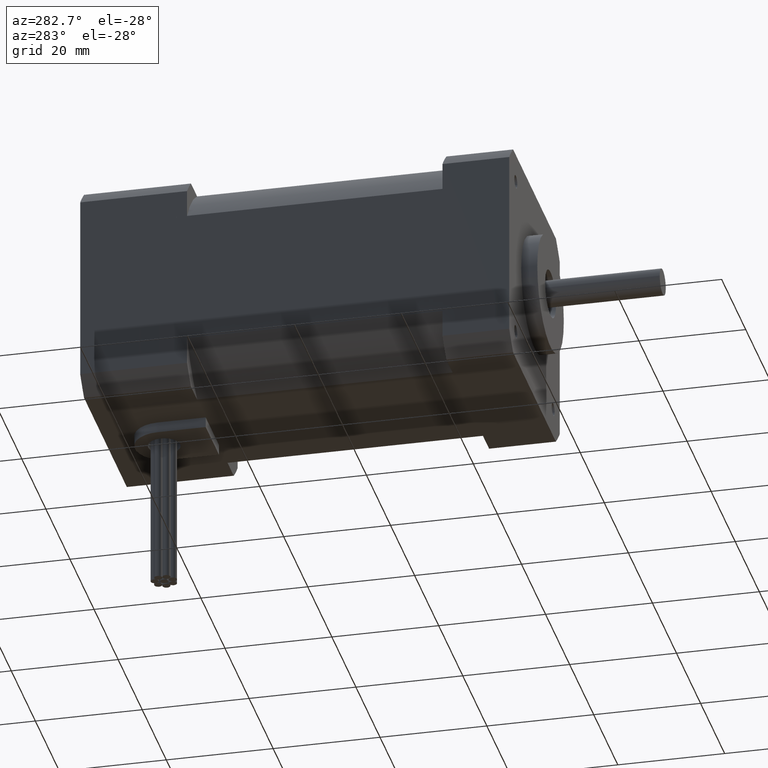
[diagram: clean part render]
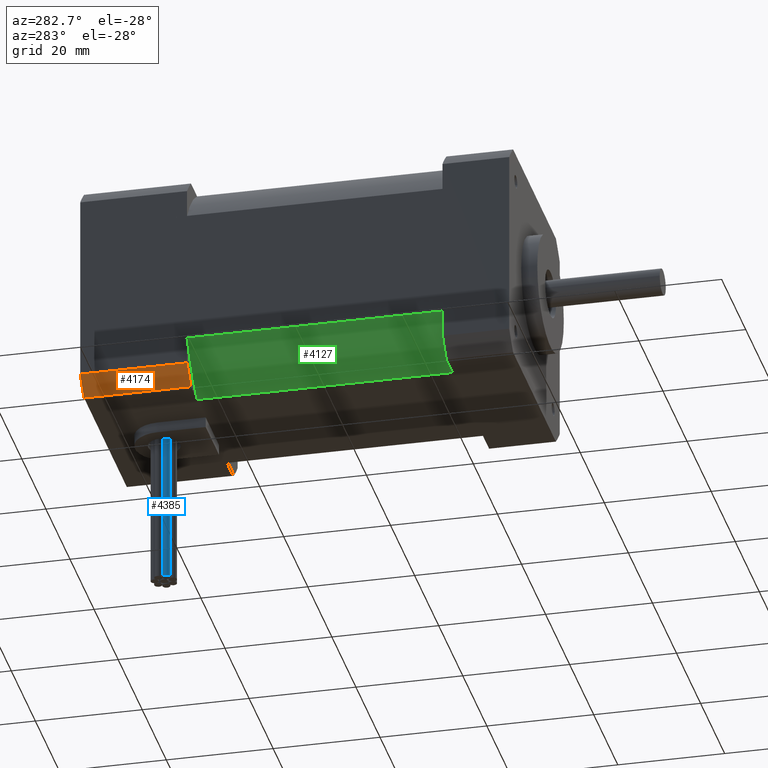
[diagram: same view with three faces highlighted in distinct colors, each labeled with its STEP entity id]
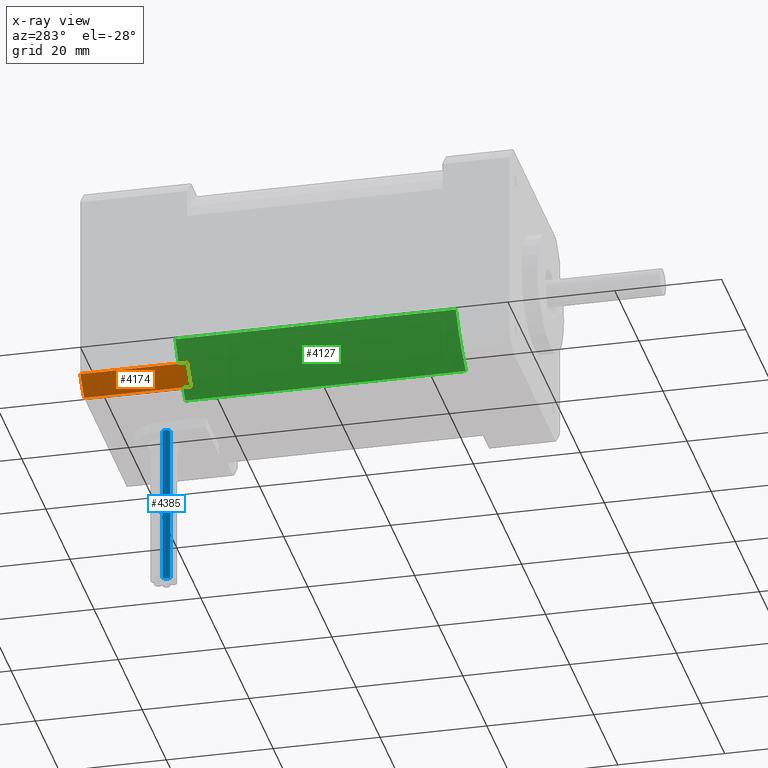
[diagram: x-ray of the same camera — body ghosted, the three highlighted faces saturated]
A machine part, auxiliary view with three faces highlighted in distinct colors.
The next image is the same camera in x-ray (body ghosted, the three faces saturated) — at least one of them is partly hidden behind the body in this view.
Their STEP definitions:

[orange] entity #4174 — the highlighted cylindrical surface (partial cylindrical patch) has radius 27.5 mm, axis along (0, 1, -0).
#373=LINE('',#6390,#595);
#380=LINE('',#6404,#602);
#595=VECTOR('',#5144,2.);
#602=VECTOR('',#5153,2.);
#908=FACE_OUTER_BOUND('',#1196,.T.);
#1196=EDGE_LOOP('',(#2857,#2858,#2859,#2860));
#1515=CIRCLE('',#4496,2.75);
#1518=CIRCLE('',#4502,2.75);
#1780=VERTEX_POINT('',#6387);
#1781=VERTEX_POINT('',#6389);
#1786=VERTEX_POINT('',#6401);
#1787=VERTEX_POINT('',#6403);
#2201=EDGE_CURVE('',#1780,#1781,#373,.T.);
#2208=EDGE_CURVE('',#1787,#1786,#380,.T.);
#2212=EDGE_CURVE('',#1780,#1787,#1515,.T.);
#2218=EDGE_CURVE('',#1781,#1786,#1518,.T.);
#2857=ORIENTED_EDGE('',*,*,#2212,.T.);
#2858=ORIENTED_EDGE('',*,*,#2208,.T.);
#2859=ORIENTED_EDGE('',*,*,#2218,.F.);
#2860=ORIENTED_EDGE('',*,*,#2201,.F.);
#3817=CYLINDRICAL_SURFACE('',#4501,2.75);
#4174=ADVANCED_FACE('',(#908),#3817,.T.);
#4496=AXIS2_PLACEMENT_3D('',#6411,#5162,#5163);
#4501=AXIS2_PLACEMENT_3D('',#6422,#5175,#5176);
#4502=AXIS2_PLACEMENT_3D('',#6423,#5177,#5178);
#5144=DIRECTION('',(1.45477499778469E-16,1.,-1.24501532695106E-16));
#5153=DIRECTION('',(1.45477499778469E-16,1.,-1.24501532695106E-16));
#5162=DIRECTION('center_axis',(1.45477499778469E-16,1.,-1.24501532695106E-16));
#5163=DIRECTION('ref_axis',(-0.645646578347808,-1.14684773588243E-18,-0.763636363636364));
#5175=DIRECTION('center_axis',(1.45477499778469E-16,1.,-1.24501532695106E-16));
#5176=DIRECTION('ref_axis',(-0.645646578347808,-1.14684773588243E-18,-0.763636363636364));
#5177=DIRECTION('center_axis',(1.45477499778469E-16,1.,-1.24501532695106E-16));
#5178=DIRECTION('ref_axis',(-0.645646578347808,-1.14684773588243E-18,-0.763636363636364));
#6387=CARTESIAN_POINT('',(-2.19078804375545,3.69264350961966,-0.652197207720414));
#6389=CARTESIAN_POINT('',(-2.19078804375545,5.69264350961966,-0.652197207720415));
#6390=CARTESIAN_POINT('',(-2.19078804375545,3.69264350961966,-0.652197207720414));
#6401=CARTESIAN_POINT('',(-2.51525995329898,5.69264350961966,-0.327725298176885));
#6403=CARTESIAN_POINT('',(-2.51525995329898,3.69264350961966,-0.327725298176885));
#6404=CARTESIAN_POINT('',(-2.51525995329898,3.69264350961966,-0.327725298176885));
#6411=CARTESIAN_POINT('Origin',(-0.415259953298977,3.69264350961966,1.44780279227959));
#6422=CARTESIAN_POINT('Origin',(-0.415259953298977,3.69264350961966,1.44780279227959));
#6423=CARTESIAN_POINT('Origin',(-0.415259953298976,5.69264350961966,1.44780279227959));

[blue] entity #4385 — the highlighted cylindrical surface (bore or boss wall) has radius 0.75 mm, axis along (-0, 0, 1).
#859=FACE_BOUND('',#1467,.T.);
#1119=FACE_OUTER_BOUND('',#1466,.T.);
#1466=EDGE_LOOP('',(#3790));
#1467=EDGE_LOOP('',(#3791));
#1710=CIRCLE('',#4921,0.075);
#1711=CIRCLE('',#4922,0.075);
#2112=VERTEX_POINT('',#7600);
#2113=VERTEX_POINT('',#7602);
#2672=EDGE_CURVE('',#2112,#2112,#1710,.T.);
#2673=EDGE_CURVE('',#2113,#2113,#1711,.T.);
#3790=ORIENTED_EDGE('',*,*,#2672,.F.);
#3791=ORIENTED_EDGE('',*,*,#2673,.F.);
#3850=CYLINDRICAL_SURFACE('',#4920,0.075);
#4385=ADVANCED_FACE('',(#1119,#859),#3850,.T.);
#4920=AXIS2_PLACEMENT_3D('',#7599,#6179,#6180);
#4921=AXIS2_PLACEMENT_3D('',#7601,#6181,#6182);
#4922=AXIS2_PLACEMENT_3D('',#7603,#6183,#6184);
#6179=DIRECTION('center_axis',(-5.79298033908416E-48,1.24501532695106E-16,
1.));
#6180=DIRECTION('ref_axis',(-1.,-3.07286207100727E-32,-1.96721996307353E-48));
#6181=DIRECTION('center_axis',(-5.79298033908416E-48,1.24501532695106E-16,
1.));
#6182=DIRECTION('ref_axis',(-1.,-3.07286207100727E-32,-1.96721996307353E-48));
#6183=DIRECTION('center_axis',(5.79298033908416E-48,-1.24501532695106E-16,
-1.));
#6184=DIRECTION('ref_axis',(-1.,-3.07286207100727E-32,-1.96721996307353E-48));
#7599=CARTESIAN_POINT('Origin',(-0.5729295051819,4.51671385527409,-3.65219720772041));
#7600=CARTESIAN_POINT('',(-0.4979295051819,4.51671385527409,-0.652197207720413));
#7601=CARTESIAN_POINT('Origin',(-0.5729295051819,4.51671385527409,-0.652197207720413));
#7602=CARTESIAN_POINT('',(-0.4979295051819,4.51671385527409,-3.65219720772041));
#7603=CARTESIAN_POINT('Origin',(-0.5729295051819,4.51671385527409,-3.65219720772041));

[green] entity #4127 — the highlighted cylindrical surface (partial cylindrical patch) has radius 24.5 mm, axis along (-0, 1, -0).
#330=LINE('',#6200,#552);
#331=LINE('',#6203,#553);
#552=VECTOR('',#4937,5.25);
#553=VECTOR('',#4940,5.25);
#861=FACE_OUTER_BOUND('',#1124,.T.);
#1124=EDGE_LOOP('',(#2676,#2677,#2678,#2679));
#1472=CIRCLE('',#4409,2.45);
#1473=CIRCLE('',#4410,2.45);
#1714=VERTEX_POINT('',#6196);
#1715=VERTEX_POINT('',#6197);
#1716=VERTEX_POINT('',#6199);
#1717=VERTEX_POINT('',#6201);
#2116=EDGE_CURVE('',#1714,#1715,#1472,.T.);
#2117=EDGE_CURVE('',#1715,#1716,#330,.T.);
#2118=EDGE_CURVE('',#1717,#1716,#1473,.T.);
#2119=EDGE_CURVE('',#1714,#1717,#331,.T.);
#2676=ORIENTED_EDGE('',*,*,#2116,.T.);
#2677=ORIENTED_EDGE('',*,*,#2117,.T.);
#2678=ORIENTED_EDGE('',*,*,#2118,.F.);
#2679=ORIENTED_EDGE('',*,*,#2119,.F.);
#3795=CYLINDRICAL_SURFACE('',#4408,2.45);
#4127=ADVANCED_FACE('',(#861),#3795,.T.);
#4408=AXIS2_PLACEMENT_3D('',#6195,#4933,#4934);
#4409=AXIS2_PLACEMENT_3D('',#6198,#4935,#4936);
#4410=AXIS2_PLACEMENT_3D('',#6202,#4938,#4939);
#4933=DIRECTION('center_axis',(-6.0767174219161E-33,1.,-1.24501532695106E-16));
#4934=DIRECTION('ref_axis',(-0.515078753637712,-1.06715599452948E-16,-0.857142857142857));
#4935=DIRECTION('center_axis',(-6.0767174219161E-33,1.,-1.24501532695106E-16));
#4936=DIRECTION('ref_axis',(-0.515078753637712,-1.06715599452948E-16,-0.857142857142857));
#4937=DIRECTION('',(-6.0767174219161E-33,1.,-1.24501532695106E-16));
#4938=DIRECTION('center_axis',(-6.0767174219161E-33,1.,-1.24501532695106E-16));
#4939=DIRECTION('ref_axis',(-0.515078753637712,-1.06715599452948E-16,-0.857142857142857));
#4940=DIRECTION('',(-6.0767174219161E-33,1.,-1.24501532695106E-16));
#6195=CARTESIAN_POINT('Origin',(-0.415259953298977,-1.33735649038034,1.44780279227959));
#6196=CARTESIAN_POINT('',(-1.67720289971137,-1.33735649038034,-0.652197207720413));
#6197=CARTESIAN_POINT('',(-2.51525995329898,-1.33735649038034,0.185859845867192));
#6198=CARTESIAN_POINT('Origin',(-0.415259953298977,-1.33735649038034,1.44780279227959));
#6199=CARTESIAN_POINT('',(-2.51525995329898,3.91264350961966,0.185859845867191));
#6200=CARTESIAN_POINT('',(-2.51525995329898,-1.33735649038034,0.185859845867192));
#6201=CARTESIAN_POINT('',(-1.67720289971137,3.91264350961966,-0.652197207720414));
#6202=CARTESIAN_POINT('Origin',(-0.415259953298977,3.91264350961966,1.44780279227959));
#6203=CARTESIAN_POINT('',(-1.67720289971137,-1.33735649038034,-0.652197207720413));